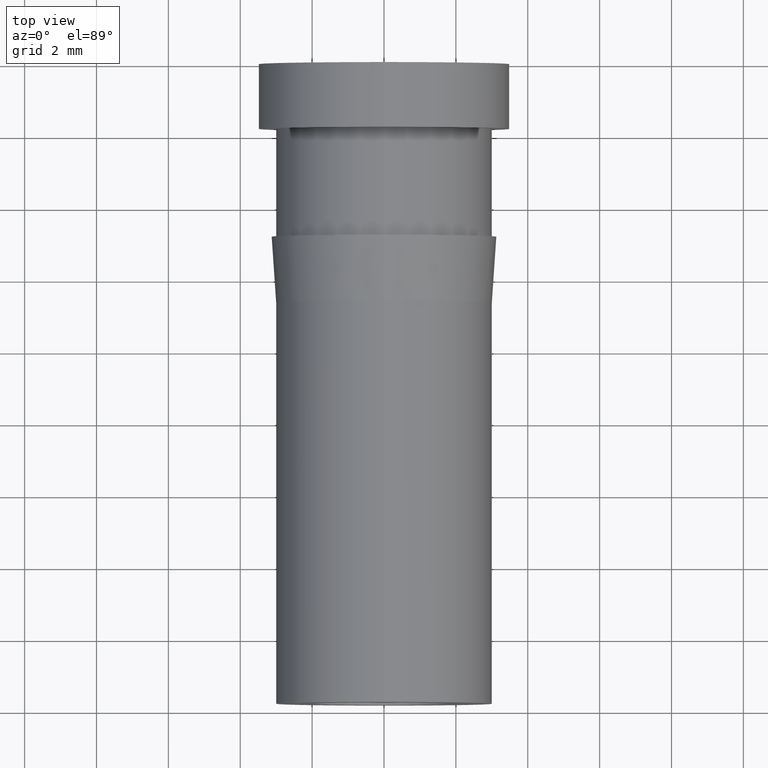
[diagram: clean part render]
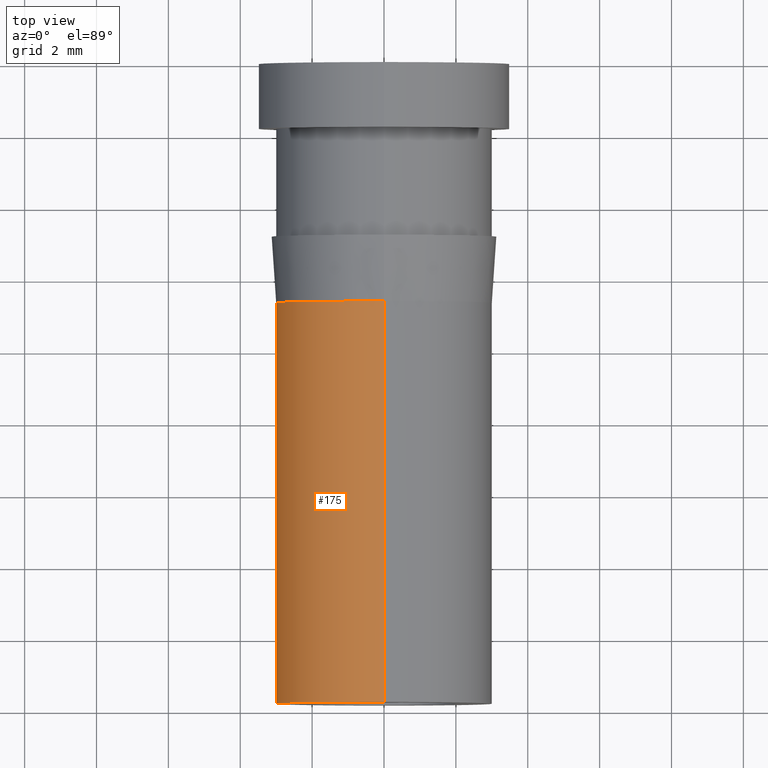
[diagram: same view with one face highlighted and labeled with its STEP entity id]
A machine part, top view. The second image highlights one B-rep face of the part: STEP entity #175.
In plain terms, the highlighted cylindrical surface (partial cylindrical patch) has radius 3 mm, axis along (-0, -1, -0).
Its self-contained STEP definition (entity closure, byte-faithful):
#1 = DIRECTION ( 'NONE',  ( -0.0000000000000000000, -1.000000000000000000, -0.0000000000000000000 ) ) ;
#31 = VERTEX_POINT ( 'NONE', #119 ) ;
#46 = CIRCLE ( 'NONE', #130, 2.999999999999998668 ) ;
#50 = VERTEX_POINT ( 'NONE', #326 ) ;
#64 = DIRECTION ( 'NONE',  ( -0.0000000000000000000, -1.000000000000000000, -0.0000000000000000000 ) ) ;
#66 = DIRECTION ( 'NONE',  ( -0.0000000000000000000, -1.000000000000000000, -0.0000000000000000000 ) ) ;
#96 = FACE_OUTER_BOUND ( 'NONE', #405, .T. ) ;
#99 = AXIS2_PLACEMENT_3D ( 'NONE', #197, #64, #309 ) ;
#119 = CARTESIAN_POINT ( 'NONE',  ( 3.750480822388768843E-16, -6.641797671233707234, -2.999999999999999556 ) ) ;
#130 = AXIS2_PLACEMENT_3D ( 'NONE', #199, #446, #339 ) ;
#133 = CARTESIAN_POINT ( 'NONE',  ( 0.0000000000000000000, -6.641797671233707234, 0.0000000000000000000 ) ) ;
#135 = EDGE_CURVE ( 'NONE', #50, #269, #46, .T. ) ;
#140 = EDGE_CURVE ( 'NONE', #162, #31, #306, .T. ) ;
#145 = DIRECTION ( 'NONE',  ( -0.0000000000000000000, -1.000000000000000000, -0.0000000000000000000 ) ) ;
#148 = ORIENTED_EDGE ( 'NONE', *, *, #135, .F. ) ;
#162 = VERTEX_POINT ( 'NONE', #347 ) ;
#174 = CARTESIAN_POINT ( 'NONE',  ( 0.0000000000000000000, -17.80000000000000071, -2.999999999999998668 ) ) ;
#175 = ADVANCED_FACE ( 'NONE', ( #96 ), #382, .T. ) ;
#197 = CARTESIAN_POINT ( 'NONE',  ( 0.0000000000000000000, -17.80000000000000071, 0.0000000000000000000 ) ) ;
#199 = CARTESIAN_POINT ( 'NONE',  ( 0.0000000000000000000, -17.80000000000000071, 0.0000000000000000000 ) ) ;
#209 = VECTOR ( 'NONE', #1, 1000.000000000000000 ) ;
#257 = ORIENTED_EDGE ( 'NONE', *, *, #346, .T. ) ;
#269 = VERTEX_POINT ( 'NONE', #174 ) ;
#278 = LINE ( 'NONE', #318, #209 ) ;
#304 = ORIENTED_EDGE ( 'NONE', *, *, #140, .T. ) ;
#306 = CIRCLE ( 'NONE', #319, 2.999999999999999556 ) ;
#309 = DIRECTION ( 'NONE',  ( 0.0000000000000000000, 0.0000000000000000000, -1.000000000000000000 ) ) ;
#318 = CARTESIAN_POINT ( 'NONE',  ( 3.673940397442058882E-16, -17.80000000000000071, 2.999999999999999112 ) ) ;
#319 = AXIS2_PLACEMENT_3D ( 'NONE', #133, #66, #408 ) ;
#326 = CARTESIAN_POINT ( 'NONE',  ( 3.673940397442058389E-16, -17.80000000000000071, 2.999999999999998668 ) ) ;
#335 = ORIENTED_EDGE ( 'NONE', *, *, #394, .F. ) ;
#339 = DIRECTION ( 'NONE',  ( 0.0000000000000000000, 0.0000000000000000000, -1.000000000000000000 ) ) ;
#346 = EDGE_CURVE ( 'NONE', #31, #269, #350, .T. ) ;
#347 = CARTESIAN_POINT ( 'NONE',  ( 0.0000000000000000000, -6.641797671233707234, 2.999999999999999556 ) ) ;
#350 = LINE ( 'NONE', #351, #381 ) ;
#351 = CARTESIAN_POINT ( 'NONE',  ( 0.0000000000000000000, -17.80000000000000071, -2.999999999999999112 ) ) ;
#381 = VECTOR ( 'NONE', #145, 1000.000000000000000 ) ;
#382 = CYLINDRICAL_SURFACE ( 'NONE', #99, 2.999999999999999112 ) ;
#394 = EDGE_CURVE ( 'NONE', #162, #50, #278, .T. ) ;
#405 = EDGE_LOOP ( 'NONE', ( #335, #304, #257, #148 ) ) ;
#408 = DIRECTION ( 'NONE',  ( 0.0000000000000000000, 0.0000000000000000000, -1.000000000000000000 ) ) ;
#446 = DIRECTION ( 'NONE',  ( -0.0000000000000000000, -1.000000000000000000, -0.0000000000000000000 ) ) ;